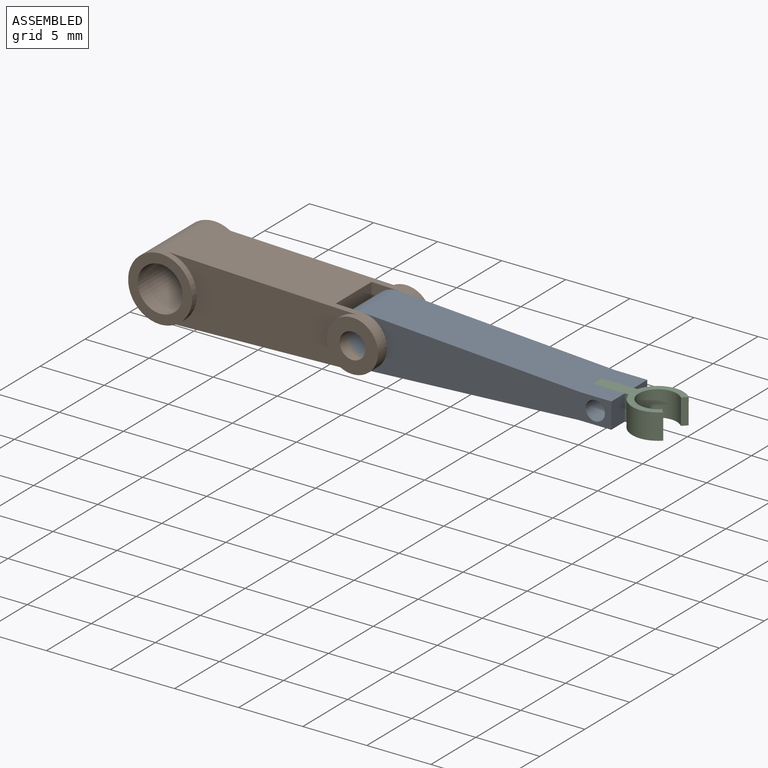
[diagram: assembled view]
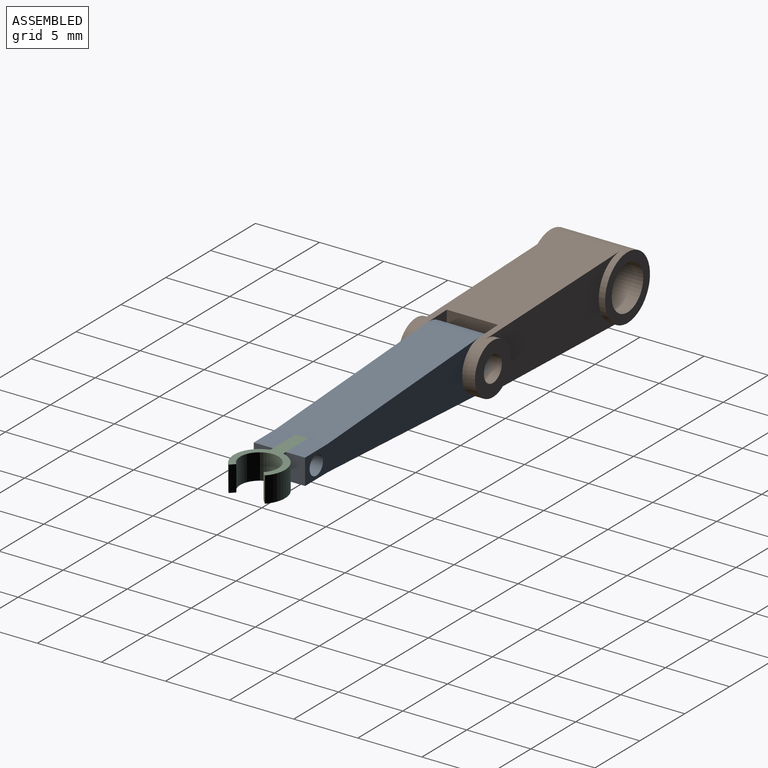
[diagram: assembled view, second angle]
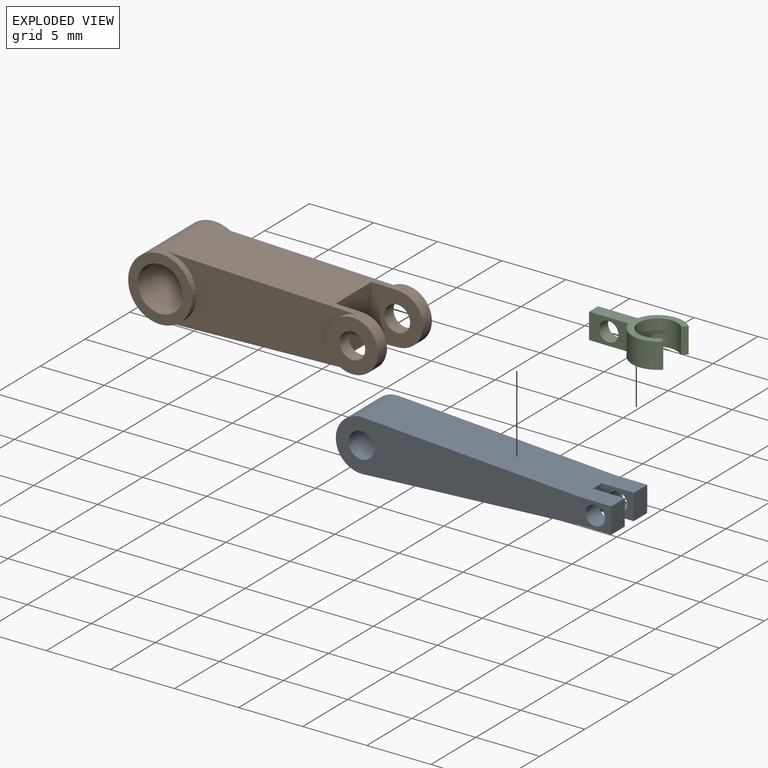
[diagram: exploded view]
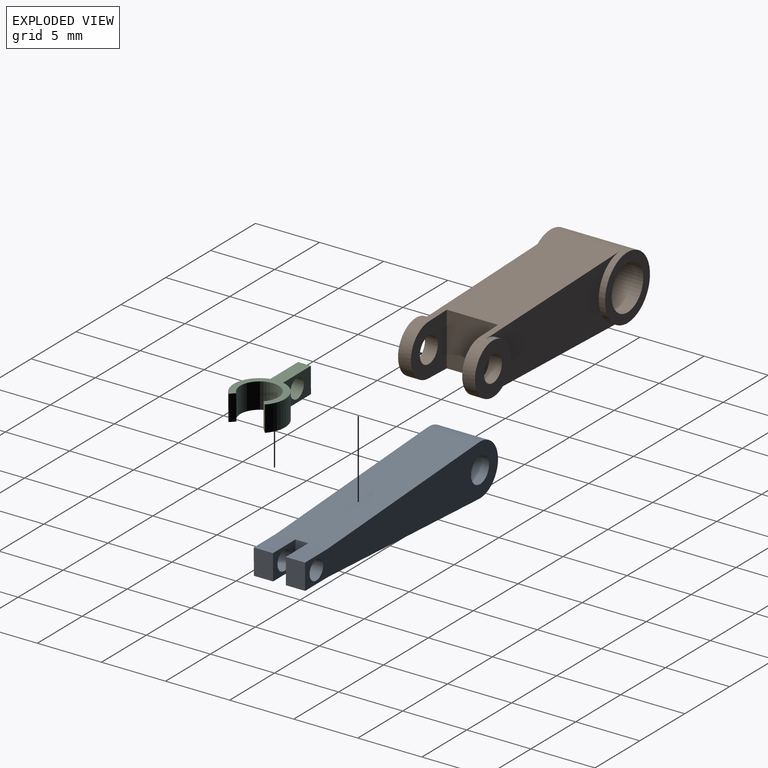
[diagram: exploded view, second angle]
ASSEMBLY  parts=3 mates=2
PART A: 17 faces, bbox 21.5x4x4 mm
  f0: plane 2x1mm, normal (1,0,0), area 2mm2, adj f1,f2,f7,f11
  f1: plane 16.88x4mm, normal (0.06,0,1), area 67.6mm2, adj f0,f3,f4,f6,f9,f12
  f2: plane 16.88x4mm, normal (0.06,0,-1), area 67.6mm2, adj f0,f3,f4,f6,f8,f13
  f3: plane 21.5x4mm, normal (0,-1,0), area 57.4mm2, adj f1,f2,f5,f6,f12,f13,f14,f15
  f4: plane 21.5x4mm, normal (0,1,0), area 57.4mm2, adj f1,f2,f5,f6,f8,f9,f10,f16
  f5: cylinder r=1mm len=4mm, axis (0,1,0), area 25.1mm2, adj f3,f4
  f6: cylinder r=2mm len=4mm, axis (0,1,0), area 26.1mm2, adj f1,f2,f3,f4
  f7: plane 2.5x2mm, normal (0,-1,0), area 3.2mm2, adj f0,f8,f9,f10,f16
  f8: plane 2.5x1.5mm, normal (0,0,-1), area 3.8mm2, adj f2,f4,f7,f10
  f9: plane 2.5x1.5mm, normal (0,0,1), area 3.8mm2, adj f1,f4,f7,f10
  f10: plane 2x1.5mm, normal (1,0,0), area 3mm2, adj f4,f7,f8,f9
  f11: plane 2.5x2mm, normal (0,1,0), area 3.2mm2, adj f0,f12,f13,f14,f15
  f12: plane 2.5x1.5mm, normal (0,0,1), area 3.8mm2, adj f1,f3,f11,f14
  f13: plane 2.5x1.5mm, normal (0,0,-1), area 3.8mm2, adj f2,f3,f11,f14
  f14: plane 2x1.5mm, normal (1,0,0), area 3mm2, adj f3,f11,f12,f13
  f15: cylinder r=0.75mm len=1.5mm, axis (0,1,0), area 7.1mm2, adj f3,f11
  f16: cylinder r=0.75mm len=1.5mm, axis (0,1,0), area 7.1mm2, adj f4,f7
PART B: 19 faces, bbox 19.5x6x5 mm
  f0: cylinder r=2mm len=4mm, axis (0,1,0), area 9.4mm2, adj f2,f3,f8,f9,f10
  f1: cylinder r=1mm len=2mm, axis (0,1,0), area 6.3mm2, adj f2,f3
  f2: plane 4x4mm, normal (0,-1,0), area 9.4mm2, adj f0,f1
  f3: plane 4.14x4mm, normal (0,1,0), area 11.3mm2, adj f0,f1,f8,f9,f18
  f4: cylinder r=2mm len=4mm, axis (0,1,0), area 9.4mm2, adj f6,f7,f8,f9,f11
  f5: cylinder r=1mm len=2mm, axis (0,1,0), area 6.3mm2, adj f6,f7
  f6: plane 4x4mm, normal (0,1,0), area 9.4mm2, adj f4,f5
  f7: plane 4.14x4mm, normal (0,-1,0), area 11.3mm2, adj f4,f5,f8,f9,f18
  f8: plane 15.07x6mm, normal (0.03,0,1), area 67.3mm2, adj f0,f3,f4,f7,f10,f11,f12,f13
  f9: plane 15.07x6mm, normal (0.03,0,-1), area 67.3mm2, adj f0,f3,f4,f7,f10,f11,f12,f13
  f10: plane 14.9x4.99mm, normal (0,-1,0), area 51.4mm2, adj f0,f8,f9,f12
  f11: plane 14.9x4.99mm, normal (0,1,0), area 51.4mm2, adj f4,f8,f9,f13
  f12: cylinder r=2.5mm len=4.99mm, axis (0,1,0), area 3.8mm2, adj f8,f9,f10,f16
  f13: cylinder r=2.5mm len=4.99mm, axis (0,1,0), area 3.8mm2, adj f8,f9,f11,f17
  f14: cylinder r=2.5mm len=6mm, axis (0,1,0), area 47.1mm2, adj f8,f9,f16,f17
  f15: cylinder r=1.75mm len=6mm, axis (0,1,0), area 66mm2, adj f16,f17
  f16: plane 5x5mm, normal (0,-1,0), area 10mm2, adj f8,f9,f12,f14,f15
  f17: plane 5x5mm, normal (0,1,0), area 10mm2, adj f8,f9,f13,f14,f15
  f18: plane 4.14x4mm, normal (1,0,0), area 16.5mm2, adj f3,f7,f8,f9
PART C: 11 faces, bbox 6.4x4x2 mm
  f0: cylinder r=1.5mm len=3mm, axis (0,0,-1), area 14.1mm2, adj f1,f7,f8,f9
  f1: plane 2x0.35mm, normal (0.71,-0.71,0), area 1mm2, adj f0,f2,f8,f9
  f2: cylinder r=2mm len=3.35mm, axis (0,0,-1), area 8.4mm2, adj f1,f3,f8,f9
  f3: plane 3.08x2mm, normal (0,1,0), area 4.4mm2, adj f2,f4,f8,f9,f10
  f4: plane 2x1mm, normal (-1,0,0), area 2mm2, adj f3,f5,f8,f9
  f5: plane 3.08x2mm, normal (0,-1,0), area 4.4mm2, adj f4,f6,f8,f9,f10
  f6: cylinder r=2mm len=3.35mm, axis (0,0,-1), area 8.4mm2, adj f5,f7,f8,f9
  f7: plane 2x0.35mm, normal (0.71,0.71,0), area 1mm2, adj f0,f6,f8,f9
  f8: plane 6.43x4mm, normal (0,0,1), area 7.2mm2, adj f0,f1,f2,f3,f4,f5,f6,f7
  f9: plane 6.43x4mm, normal (0,0,-1), area 7.2mm2, adj f0,f1,f2,f3,f4,f5,f6,f7
  f10: cylinder r=0.75mm len=1.5mm, axis (0,1,0), area 4.7mm2, adj f3,f5
PLACE A rot(axis=(0,1,0),0.3deg) t=(1.91,4.37,-8.19)mm fixed
PLACE B t=(1.91,4.37,-8.25)mm
PLACE C rot(axis=(0,1,0),0.3deg) t=(-3.35,4.37,-8.16)mm
MATE revolute A.f5 <-> B.f0  axis (0,1,0) through (16.91,2.37,-8.25)mm
MATE revolute A.f15 <-> C.f10  axis (0,1,0) through (35.16,4.87,-8.33)mm
